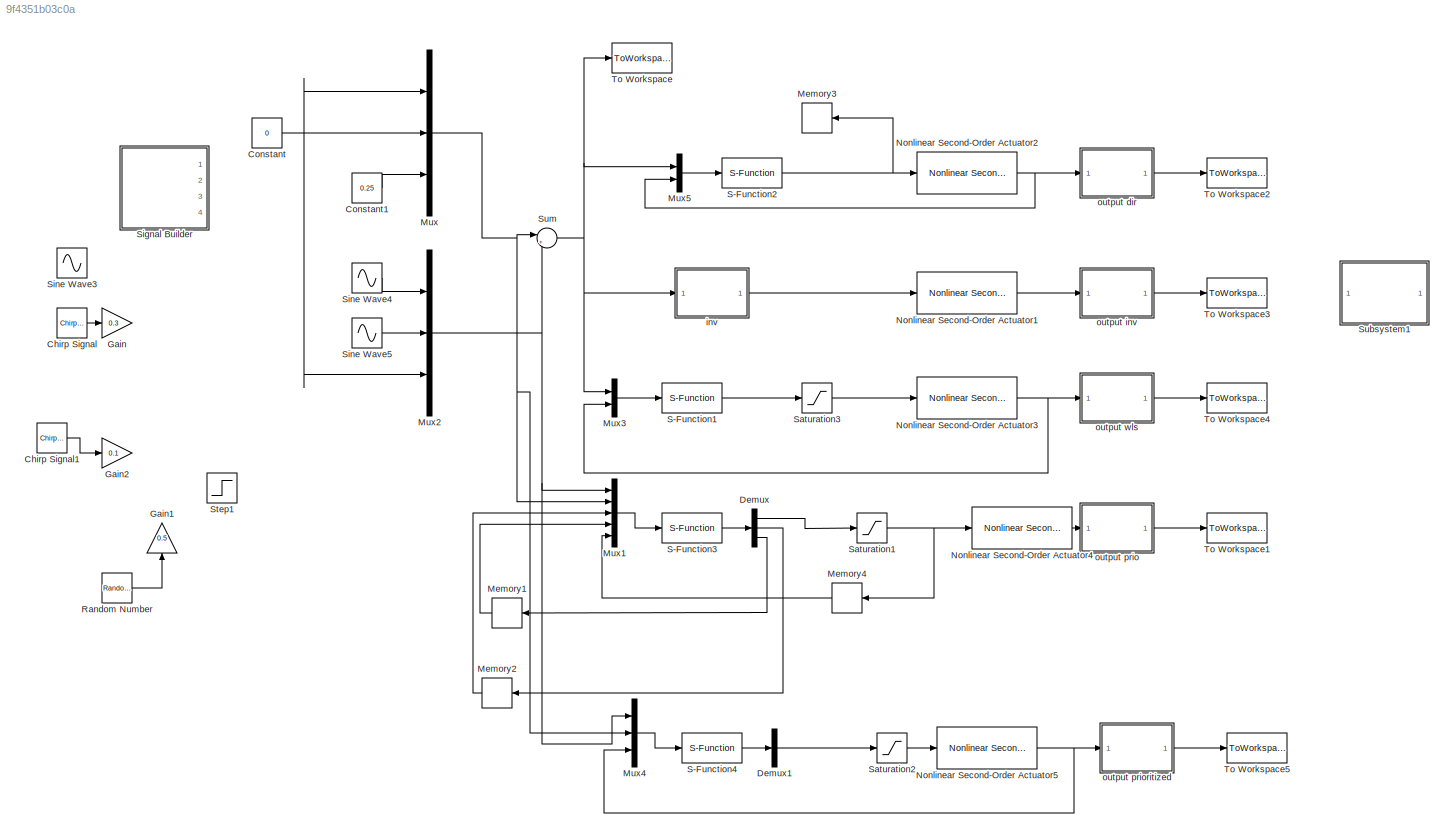
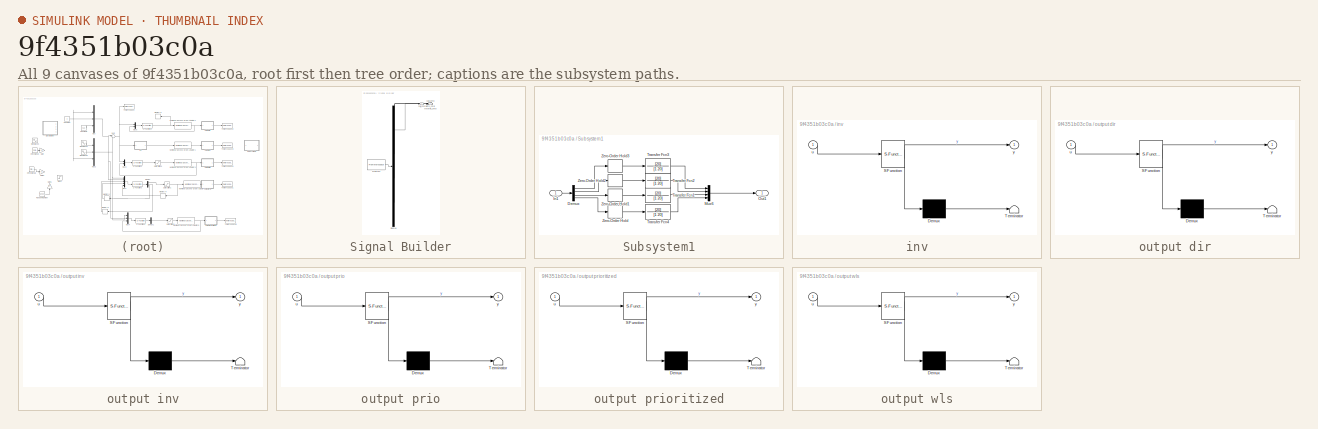
[diagram: thumbnail index - all 9 canvases of the model, root first then tree order]
MODEL slx_9f4351b03c0a
KIND model
CONFIG AbsTol = auto
CONFIG EnableMultiTasking = off
CONFIG FixedStep = 0.01
CONFIG MaxStep = auto
CONFIG MinStep = auto
CONFIG RelTol = 1e-3
CONFIG SampleTimeConstraint = Unconstrained
CONFIG Solver = FixedStepAuto
CONFIG SolverName = FixedStepAuto
CONFIG StartTime = 0.0
CONFIG StopTime = 3
BLOCK [Reference] Chirp Signal  REF=simulink/Sources/Chirp Signal
  Ports = [0, 1]
  SourceBlock = simulink/Sources/Chirp Signal
  SourceProductBaseCode = SL
  SourceProductName = Simulink
  SourceType = chirp
BLOCK [Reference] Chirp Signal1  REF=simulink/Sources/Chirp Signal
  Ports = [0, 1]
  SourceBlock = simulink/Sources/Chirp Signal
  SourceProductBaseCode = SL
  SourceProductName = Simulink
  SourceType = chirp
BLOCK [Constant] Constant
  SampleTime = 0.01
  Value = 0
BLOCK [Constant] Constant1
  SampleTime = 0.01
  Value = 0.25
BLOCK [Demux] Demux
  DisplayOption = bar
  Outputs = 3
  Ports = [1, 3]
BLOCK [Demux] Demux1
  DisplayOption = bar
  Outputs = 1
  Ports = [1, 1]
BLOCK [Gain] Gain
  Gain = 0.3
  OutDataTypeStr = Inherit: Inherit via internal rule
  ParamDataTypeStr = Inherit: Inherit via internal rule
  SaturateOnIntegerOverflow = off
BLOCK [Gain] Gain1
  Gain = 0.5
  OutDataTypeStr = Inherit: Inherit via internal rule
  ParamDataTypeStr = Inherit: Inherit via internal rule
  SaturateOnIntegerOverflow = off
BLOCK [Gain] Gain2
  Gain = 0.1
  OutDataTypeStr = Inherit: Inherit via internal rule
  ParamDataTypeStr = Inherit: Inherit via internal rule
  SaturateOnIntegerOverflow = off
BLOCK [Memory] Memory1
  InheritSampleTime = on
  InitialCondition = [0;0;0]
  LinearizeAsDelay = on
BLOCK [Memory] Memory2
  InheritSampleTime = on
  InitialCondition = [0;0;0]
  LinearizeAsDelay = on
BLOCK [Memory] Memory3
  InheritSampleTime = on
  InitialCondition = [0;0;0;0]
  LinearizeAsDelay = on
BLOCK [Memory] Memory4
  InheritSampleTime = on
  InitialCondition = [0;0;0;0]
  LinearizeAsDelay = on
BLOCK [Mux] Mux
  DisplayOption = bar
  Inputs = 3
  Ports = [3, 1]
BLOCK [Mux] Mux1
  DisplayOption = bar
  Inputs = 5
  Ports = [5, 1]
BLOCK [Mux] Mux2
  DisplayOption = bar
  Inputs = 3
  Ports = [3, 1]
BLOCK [Mux] Mux3
  DisplayOption = bar
  Inputs = 2
  Ports = [2, 1]
BLOCK [Mux] Mux4
  DisplayOption = bar
  Inputs = 3
  Ports = [3, 1]
BLOCK [Mux] Mux5
  DisplayOption = bar
  Inputs = 2
  Ports = [2, 1]
BLOCK [Reference] Nonlinear Second-Order Actuator1  REF=aerolibactuator/Nonlinear Second-Order Actuator
  Ports = [1, 1]
  SourceBlock = aerolibactuator/Nonlinear Second-Order Actuator
  SourceProductBaseCode = AE
  SourceProductName = Aerospace Blockset
  SourceType = NonlinearSecondOrderActuator
BLOCK [Reference] Nonlinear Second-Order Actuator2  REF=aerolibactuator/Nonlinear Second-Order Actuator
  Ports = [1, 1]
  SourceBlock = aerolibactuator/Nonlinear Second-Order Actuator
  SourceProductBaseCode = AE
  SourceProductName = Aerospace Blockset
  SourceType = NonlinearSecondOrderActuator
BLOCK [Reference] Nonlinear Second-Order Actuator3  REF=aerolibactuator/Nonlinear Second-Order Actuator
  Ports = [1, 1]
  SourceBlock = aerolibactuator/Nonlinear Second-Order Actuator
  SourceProductBaseCode = AE
  SourceProductName = Aerospace Blockset
  SourceType = NonlinearSecondOrderActuator
BLOCK [Reference] Nonlinear Second-Order Actuator4  REF=aerolibactuator/Nonlinear Second-Order Actuator
  Ports = [1, 1]
  SourceBlock = aerolibactuator/Nonlinear Second-Order Actuator
  SourceProductBaseCode = AE
  SourceProductName = Aerospace Blockset
  SourceType = NonlinearSecondOrderActuator
BLOCK [Reference] Nonlinear Second-Order Actuator5  REF=aerolibactuator/Nonlinear Second-Order Actuator
  Ports = [1, 1]
  SourceBlock = aerolibactuator/Nonlinear Second-Order Actuator
  SourceProductBaseCode = AE
  SourceProductName = Aerospace Blockset
  SourceType = NonlinearSecondOrderActuator
BLOCK [RandomNumber] Random Number
  SampleTime = 0.01
  Variance = 0.1
BLOCK [S-Function] S-Function1
  EnableBusSupport = off
  FunctionName = s_wls
  Ports = [1, 1]
  SFcnIsStateOwnerBlock = off
  SFunctionDeploymentMode = off
BLOCK [S-Function] S-Function2
  EnableBusSupport = off
  FunctionName = s_direct
  Ports = [1, 1]
  SFcnIsStateOwnerBlock = off
  SFunctionDeploymentMode = off
BLOCK [S-Function] S-Function3
  EnableBusSupport = off
  FunctionName = s_prio
  Ports = [1, 1]
  SFcnIsStateOwnerBlock = off
  SFunctionDeploymentMode = off
BLOCK [S-Function] S-Function4
  EnableBusSupport = off
  FunctionName = s_prioritized
  Ports = [1, 1]
  SFcnIsStateOwnerBlock = off
  SFunctionDeploymentMode = off
BLOCK [Saturate] Saturation1
  InputPortMap = u0
  LowerLimit = -[1;1;1;1]*20*pi/180
  Ports = [1, 1]
  UpperLimit = [1;1;1;1]*20*pi/180
BLOCK [Saturate] Saturation2
  InputPortMap = u0
  LowerLimit = -[1;1;1;1]*20*pi/180
  Ports = [1, 1]
  UpperLimit = [1;1;1;1]*20*pi/180
BLOCK [Saturate] Saturation3
  InputPortMap = u0
  LowerLimit = -[1;1;1;1]*20*pi/180
  Ports = [1, 1]
  UpperLimit = [1;1;1;1]*20*pi/180
BLOCK [SubSystem] Signal Builder
  ClipboardFcn = sigbuilder_block('clipboard');
  CloseFcn = sigbuilder_block('close');
  ContinueFcn = sigbuilder_block('continue');
  CopyFcn = sigbuilder_block('copy');
  DeleteFcn = sigbuilder_block('delete');
  LoadFcn = sigbuilder_block('load');
  MaskHideContents = on
  ModelCloseFcn = sigbuilder_block('modelClose');
  NameChangeFcn = sigbuilder_block('namechange');
  OpenFcn = sigbuilder_block('open',[42.75 46.5 943.5 423.75 ]);
  PauseFcn = sigbuilder_block('pause');
  Ports = [0, 4]
  PreSaveFcn = sigbuilder_block('preSave');
  RequestExecContextInheritance = off
  StartFcn = sigbuilder_block('start');
  StopFcn = sigbuilder_block('stop');
  Tag = STV Subsys
BLOCK [Demux] Signal Builder/Demux
  Ports = [1, 4]
  Tag = STV Demux
BLOCK [FromWorkspace] Signal Builder/FromWs
  SampleTime = 0
  Tag = STV FromWs
  VariableName = tuvar
  ZeroCross = on
BLOCK [Outport] Signal Builder/picth_cmd
  IconDisplay = Port number
  Port = 2
  Tag = STV Outport
BLOCK [Outport] Signal Builder/roll_cmd
  IconDisplay = Port number
  Tag = STV Outport
BLOCK [Outport] Signal Builder/throttle_cmd
  IconDisplay = Port number
  Port = 4
  Tag = STV Outport
BLOCK [Outport] Signal Builder/yaw_cmd
  IconDisplay = Port number
  Port = 3
  Tag = STV Outport
BLOCK [Sin] Sine Wave3
  Amplitude = 0.34
  Frequency = 2*pi/2
  Ports = [0, 1]
  SampleTime = 0.01
BLOCK [Sin] Sine Wave4
  Amplitude = 0.34
  Frequency = 2*pi/2
  Phase = pi/2
  Ports = [0, 1]
  SampleTime = 0
BLOCK [Sin] Sine Wave5
  Amplitude = 0.34
  Frequency = 2*pi/2
  Ports = [0, 1]
  SampleTime = 0.01
BLOCK [Step] Step1
  After = 0.4
  SampleTime = 0
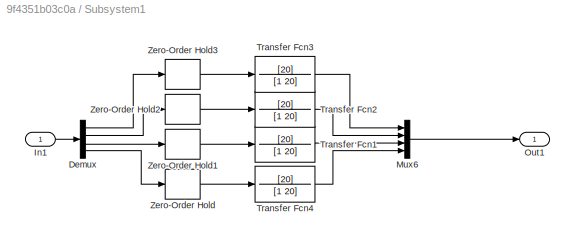
BLOCK [SubSystem] Subsystem1
  Ports = [1, 1]
  RequestExecContextInheritance = off
BLOCK [Demux] Subsystem1/Demux
  DisplayOption = bar
  Ports = [1, 4]
BLOCK [Inport] Subsystem1/In1
  IconDisplay = Port number
BLOCK [Mux] Subsystem1/Mux6
  DisplayOption = bar
  Ports = [4, 1]
BLOCK [Outport] Subsystem1/Out1
  IconDisplay = Port number
BLOCK [TransferFcn] Subsystem1/Transfer Fcn1
  Denominator = [1 20]
  Numerator = [20]
BLOCK [TransferFcn] Subsystem1/Transfer Fcn2
  Denominator = [1 20]
  Numerator = [20]
BLOCK [TransferFcn] Subsystem1/Transfer Fcn3
  Denominator = [1 20]
  Numerator = [20]
BLOCK [TransferFcn] Subsystem1/Transfer Fcn4
  Denominator = [1 20]
  Numerator = [20]
BLOCK [ZeroOrderHold] Subsystem1/Zero-Order Hold
  SampleTime = -1
BLOCK [ZeroOrderHold] Subsystem1/Zero-Order Hold1
  SampleTime = -1
BLOCK [ZeroOrderHold] Subsystem1/Zero-Order Hold2
  SampleTime = -1
BLOCK [ZeroOrderHold] Subsystem1/Zero-Order Hold3
  SampleTime = -1
BLOCK [Sum] Sum
  IconShape = round
  InputSameDT = off
  Inputs = |++
  OutDataTypeStr = Inherit: Inherit via internal rule
  Ports = [2, 1]
  SaturateOnIntegerOverflow = off
BLOCK [ToWorkspace] To Workspace
  FixptAsFi = on
  MaxDataPoints = inf
  Ports = [1]
  SampleTime = -1
  Save2DSignal = 3-D array (concatenate along third dimension)
  SaveFormat = Timeseries
  VariableName = input
BLOCK [ToWorkspace] To Workspace1
  FixptAsFi = on
  MaxDataPoints = inf
  Ports = [1]
  SampleTime = -1
  Save2DSignal = 3-D array (concatenate along third dimension)
  SaveFormat = Timeseries
  VariableName = output_prio
BLOCK [ToWorkspace] To Workspace2
  FixptAsFi = on
  MaxDataPoints = inf
  Ports = [1]
  SampleTime = -1
  Save2DSignal = 3-D array (concatenate along third dimension)
  SaveFormat = Timeseries
  VariableName = output_dir
BLOCK [ToWorkspace] To Workspace3
  FixptAsFi = on
  MaxDataPoints = inf
  Ports = [1]
  SampleTime = -1
  Save2DSignal = 3-D array (concatenate along third dimension)
  SaveFormat = Timeseries
  VariableName = output_inv
BLOCK [ToWorkspace] To Workspace4
  FixptAsFi = on
  MaxDataPoints = inf
  Ports = [1]
  SampleTime = -1
  Save2DSignal = 3-D array (concatenate along third dimension)
  SaveFormat = Timeseries
  VariableName = output_wls
BLOCK [ToWorkspace] To Workspace5
  FixptAsFi = on
  MaxDataPoints = inf
  Ports = [1]
  SampleTime = -1
  Save2DSignal = 3-D array (concatenate along third dimension)
  SaveFormat = Timeseries
  VariableName = output_prio1
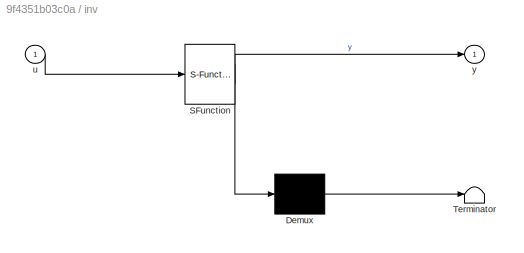
BLOCK [SubSystem] inv
  ErrorFcn = Stateflow.Translate.translate
  PermitHierarchicalResolution = ExplicitOnly
  Ports = [1, 1]
  RequestExecContextInheritance = off
  SFBlockType = MATLAB Function
  TreatAsAtomicUnit = on
BLOCK [Demux] inv/ Demux 
  Outputs = 1
  Ports = [1, 1]
BLOCK [S-Function] inv/ SFunction 
  EnableBusSupport = on
  FunctionName = sf_sfun
  PortCounts = [1 2]
  Ports = [1, 2]
  SFcnIsStateOwnerBlock = off
  SFunctionDeploymentMode = off
  Tag = Stateflow S-Function ac1 15
BLOCK [Terminator] inv/ Terminator 
BLOCK [Inport] inv/u
  IconDisplay = Port number
BLOCK [Outport] inv/y
  IconDisplay = Port number
BLOCK [SubSystem] output dir
  ErrorFcn = Stateflow.Translate.translate
  PermitHierarchicalResolution = ExplicitOnly
  Ports = [1, 1]
  RequestExecContextInheritance = off
  SFBlockType = MATLAB Function
  SystemSampleTime = 0.01
  TreatAsAtomicUnit = on
BLOCK [Demux] output dir/ Demux 
  Outputs = 1
  Ports = [1, 1]
BLOCK [S-Function] output dir/ SFunction 
  EnableBusSupport = on
  FunctionName = sf_sfun
  PortCounts = [1 2]
  Ports = [1, 2]
  SFcnIsStateOwnerBlock = off
  SFunctionDeploymentMode = off
  Tag = Stateflow S-Function ac1 3
BLOCK [Terminator] output dir/ Terminator 
BLOCK [Inport] output dir/u
  IconDisplay = Port number
BLOCK [Outport] output dir/y
  IconDisplay = Port number
BLOCK [SubSystem] output inv
  ErrorFcn = Stateflow.Translate.translate
  PermitHierarchicalResolution = ExplicitOnly
  Ports = [1, 1]
  RequestExecContextInheritance = off
  SFBlockType = MATLAB Function
  SystemSampleTime = 0.01
  TreatAsAtomicUnit = on
BLOCK [Demux] output inv/ Demux 
  Outputs = 1
  Ports = [1, 1]
BLOCK [S-Function] output inv/ SFunction 
  EnableBusSupport = on
  FunctionName = sf_sfun
  PortCounts = [1 2]
  Ports = [1, 2]
  SFcnIsStateOwnerBlock = off
  SFunctionDeploymentMode = off
  Tag = Stateflow S-Function ac1 5
BLOCK [Terminator] output inv/ Terminator 
BLOCK [Inport] output inv/u
  IconDisplay = Port number
BLOCK [Outport] output inv/y
  IconDisplay = Port number
BLOCK [SubSystem] output prio
  ErrorFcn = Stateflow.Translate.translate
  PermitHierarchicalResolution = ExplicitOnly
  Ports = [1, 1]
  RequestExecContextInheritance = off
  SFBlockType = MATLAB Function
  SystemSampleTime = 0.01
  TreatAsAtomicUnit = on
BLOCK [Demux] output prio/ Demux 
  Outputs = 1
  Ports = [1, 1]
BLOCK [S-Function] output prio/ SFunction 
  EnableBusSupport = on
  FunctionName = sf_sfun
  PortCounts = [1 2]
  Ports = [1, 2]
  SFcnIsStateOwnerBlock = off
  SFunctionDeploymentMode = off
  Tag = Stateflow S-Function ac1 1
BLOCK [Terminator] output prio/ Terminator 
BLOCK [Inport] output prio/u
  IconDisplay = Port number
BLOCK [Outport] output prio/y
  IconDisplay = Port number
BLOCK [SubSystem] output prioritized
  ErrorFcn = Stateflow.Translate.translate
  PermitHierarchicalResolution = ExplicitOnly
  Ports = [1, 1]
  RequestExecContextInheritance = off
  SFBlockType = MATLAB Function
  SystemSampleTime = 0.01
  TreatAsAtomicUnit = on
BLOCK [Demux] output prioritized/ Demux 
  Outputs = 1
  Ports = [1, 1]
BLOCK [S-Function] output prioritized/ SFunction 
  EnableBusSupport = on
  FunctionName = sf_sfun
  PortCounts = [1 2]
  Ports = [1, 2]
  SFcnIsStateOwnerBlock = off
  SFunctionDeploymentMode = off
  Tag = Stateflow S-Function ac1 2
BLOCK [Terminator] output prioritized/ Terminator 
BLOCK [Inport] output prioritized/u
  IconDisplay = Port number
BLOCK [Outport] output prioritized/y
  IconDisplay = Port number
BLOCK [SubSystem] output wls
  ErrorFcn = Stateflow.Translate.translate
  PermitHierarchicalResolution = ExplicitOnly
  Ports = [1, 1]
  RequestExecContextInheritance = off
  SFBlockType = MATLAB Function
  SystemSampleTime = 0.01
  TreatAsAtomicUnit = on
BLOCK [Demux] output wls/ Demux 
  Outputs = 1
  Ports = [1, 1]
BLOCK [S-Function] output wls/ SFunction 
  EnableBusSupport = on
  FunctionName = sf_sfun
  PortCounts = [1 2]
  Ports = [1, 2]
  SFcnIsStateOwnerBlock = off
  SFunctionDeploymentMode = off
  Tag = Stateflow S-Function ac1 6
BLOCK [Terminator] output wls/ Terminator 
BLOCK [Inport] output wls/u
  IconDisplay = Port number
BLOCK [Outport] output wls/y
  IconDisplay = Port number
LINE Chirp Signal1:1 -> Gain2:1
LINE Chirp Signal:1 -> Gain:1
LINE Constant1:1 -> Mux:3
NET Constant:1 -> Mux2:3, Mux:1, Mux:2
LINE Demux1:1 -> Saturation2:1
LINE Demux:1 -> Saturation1:1
LINE Demux:2 -> Memory2:1
LINE Demux:3 -> Memory1:1
LINE Memory1:1 -> Mux1:4
LINE Memory2:1 -> Mux1:3
LINE Memory4:1 -> Mux1:5
LINE Mux1:1 -> S-Function3:1
NET Mux2:1 -> Mux1:1, Mux4:2, Sum:2
LINE Mux3:1 -> S-Function1:1
LINE Mux4:1 -> S-Function4:1
LINE Mux5:1 -> S-Function2:1
NET Mux:1 -> Mux1:2, Mux4:1, Sum:1
LINE Nonlinear Second-Order Actuator1:1 -> output inv:1
NET Nonlinear Second-Order Actuator2:1 -> Mux5:2, output dir:1
NET Nonlinear Second-Order Actuator3:1 -> Mux3:2, output wls:1
LINE Nonlinear Second-Order Actuator4:1 -> output prio:1
NET Nonlinear Second-Order Actuator5:1 -> Mux4:3, output prioritized:1
LINE Random Number:1 -> Gain1:1
LINE S-Function1:1 -> Saturation3:1
NET S-Function2:1 -> Memory3:1, Nonlinear Second-Order Actuator2:1
LINE S-Function3:1 -> Demux:1
LINE S-Function4:1 -> Demux1:1
NET Saturation1:1 -> Memory4:1, Nonlinear Second-Order Actuator4:1
LINE Saturation2:1 -> Nonlinear Second-Order Actuator5:1
LINE Saturation3:1 -> Nonlinear Second-Order Actuator3:1
LINE Sine Wave4:1 -> Mux2:1
LINE Sine Wave5:1 -> Mux2:2
LINE Subsystem1/Demux:1 -> Subsystem1/Zero-Order Hold3:1
LINE Subsystem1/Demux:2 -> Subsystem1/Zero-Order Hold2:1
LINE Subsystem1/Demux:3 -> Subsystem1/Zero-Order Hold1:1
LINE Subsystem1/Demux:4 -> Subsystem1/Zero-Order Hold:1
LINE Subsystem1/In1:1 -> Subsystem1/Demux:1
LINE Subsystem1/Mux6:1 -> Subsystem1/Out1:1
LINE Subsystem1/Transfer Fcn1:1 -> Subsystem1/Mux6:3
LINE Subsystem1/Transfer Fcn2:1 -> Subsystem1/Mux6:2
LINE Subsystem1/Transfer Fcn3:1 -> Subsystem1/Mux6:1
LINE Subsystem1/Transfer Fcn4:1 -> Subsystem1/Mux6:4
LINE Subsystem1/Zero-Order Hold1:1 -> Subsystem1/Transfer Fcn1:1
LINE Subsystem1/Zero-Order Hold2:1 -> Subsystem1/Transfer Fcn2:1
LINE Subsystem1/Zero-Order Hold3:1 -> Subsystem1/Transfer Fcn3:1
LINE Subsystem1/Zero-Order Hold:1 -> Subsystem1/Transfer Fcn4:1
NET Sum:1 -> Mux3:1, Mux5:1, To Workspace:1, inv:1
LINE inv:1 -> Nonlinear Second-Order Actuator1:1
LINE output dir:1 -> To Workspace2:1
LINE output inv:1 -> To Workspace3:1
LINE output prio:1 -> To Workspace1:1
LINE output prioritized:1 -> To Workspace5:1
LINE output wls:1 -> To Workspace4:1
note: NET lines group one-source signal fan-out (src -> all destinations, sorted); 1:1 wires keep LINE
CHART output prio states=1 transitions=1
  STATE_LABEL 'eML_blk_kernel()'
  STATE_LABEL 'SCRIPT:\nfunction y = fcn(u)\n% u(1)=Constrain(u(1),-0.3491,0.3491);\n% u(2)=Constrain(u(2),-0.3491,0.3491);\n% u(3)=Constrain(u(3),-0.3491,0.3491);\n% u(4)=Constrain(u(4),-0.3491,0.3491);\nB=[-0.5   0       0.5   0;\n    0  -0.5    0       0.5;\n    0.25   0.25   0.25   0.25];\nB=[-0.5393   0       0.5393   0;\n     0  -0.5393    0       0.5393;\n    0.2099   0.2099   0.2099   0.2099];\ny = B*[u(1);u(2);u(3)...<+8ch>'  <repeated x4 — deduplicated; at blocks: output prio, output prioritized, output inv, output wls>
CHART output prioritized states=1 transitions=1
  STATE_LABEL 'eML_blk_kernel()'
CHART output dir states=1 transitions=1
  STATE_LABEL 'eML_blk_kernel()'
  STATE_LABEL 'SCRIPT:\nfunction y = fcn(u)\n% u(1)=Constrain(u(1),-0.3491,0.3491);\n% u(2)=Constrain(u(2),-0.3491,0.3491);\n% u(3)=Constrain(u(3),-0.3491,0.3491);\n% u(4)=Constrain(u(4),-0.3491,0.3491);\nB=[-0.5   0       0.5   0;\n    0  -0.5    0       0.5;\n    0.25   0.25   0.25   0.25];\ny = B*[u(1);u(2);u(3);u(4)];\n'
CHART output inv states=1 transitions=1
  STATE_LABEL 'eML_blk_kernel()'
CHART output wls states=1 transitions=1
  STATE_LABEL 'eML_blk_kernel()'
CHART inv states=1 transitions=1
  STATE_LABEL 'eML_blk_kernel()'
  STATE_LABEL 'SCRIPT:\nfunction y = fcn(u)\nU = [u(1);u(2);u(3)];\n% M=crossover_point([0;0;0],e);\n% if (norm(e)>norm(M))\n%     U=M;\n% else\n%     U=e;\n% end \nB=[-0.5   0       0.5   0;\n    0  -0.5    0       0.5;\n    0.25   0.25   0.25   0.25];\nB=[-0.5393   0       0.5393   0;\n     0  -0.5393    0       0.5393;\n    0.2099   0.2099   0.2099   0.2099];\n% B=[-0.5393   0       0.5393   0;\n%      0  -0.5393    0       ...<+250ch>'
